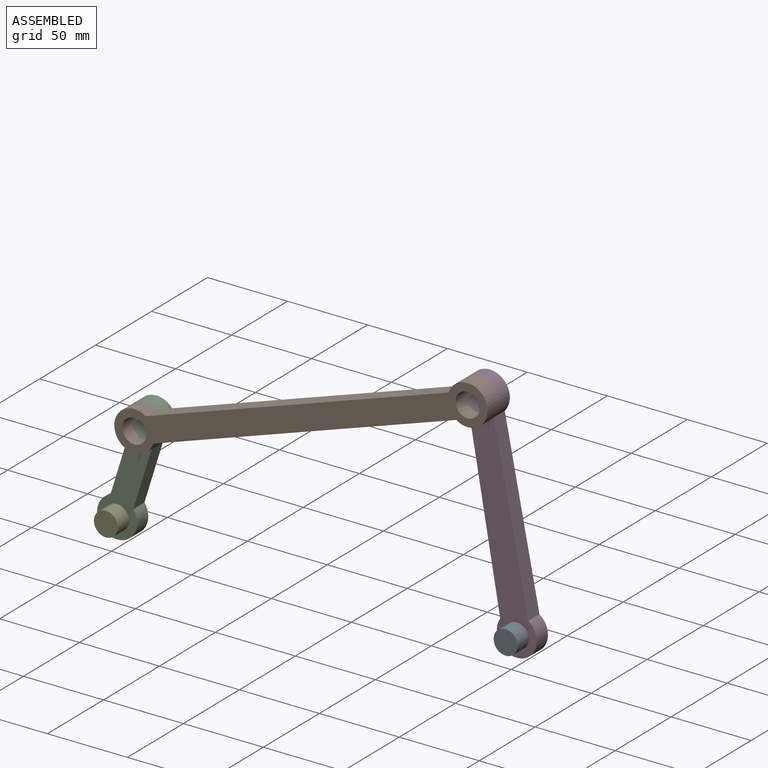
[diagram: assembled view]
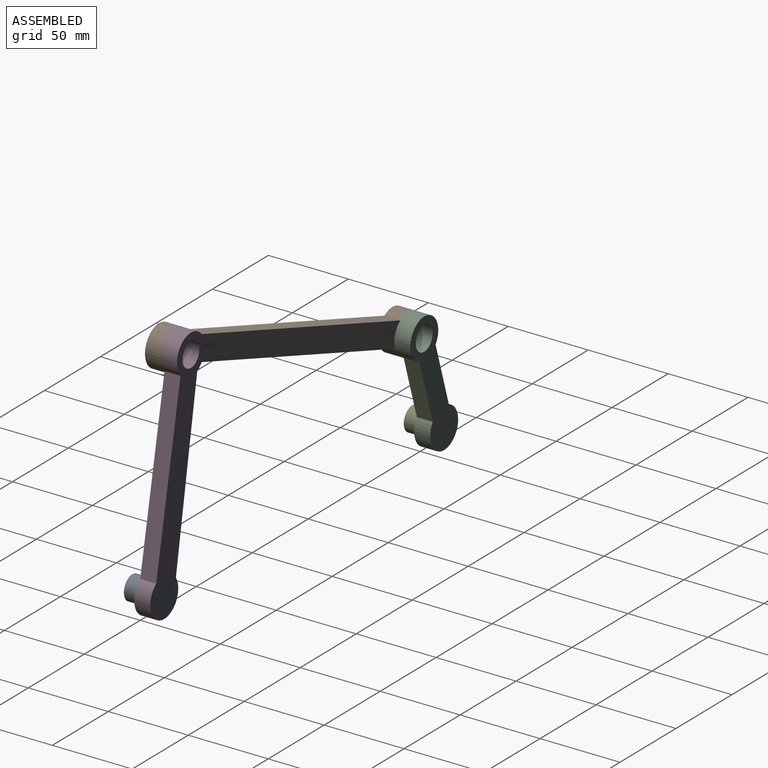
[diagram: assembled view, second angle]
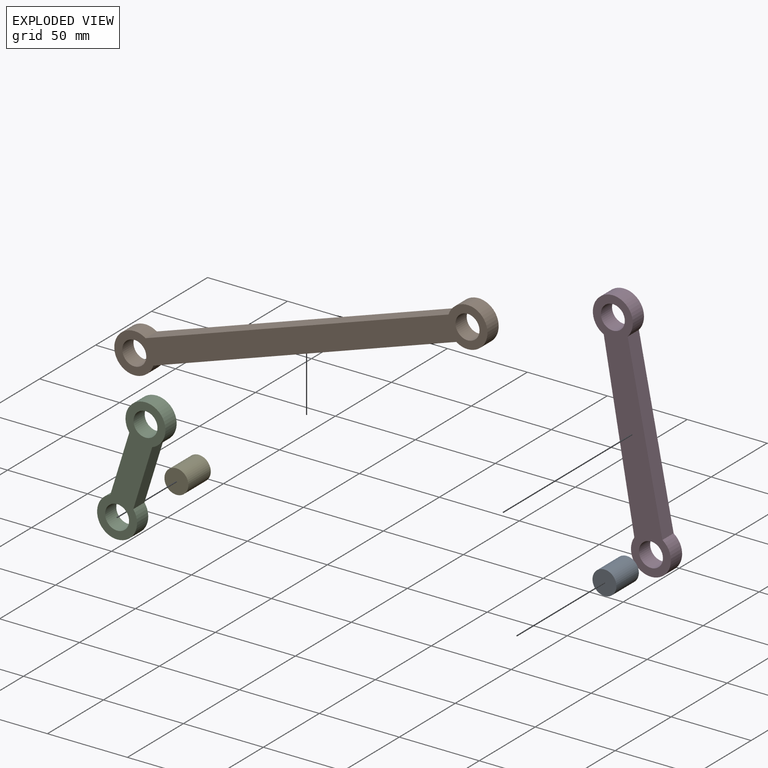
[diagram: exploded view]
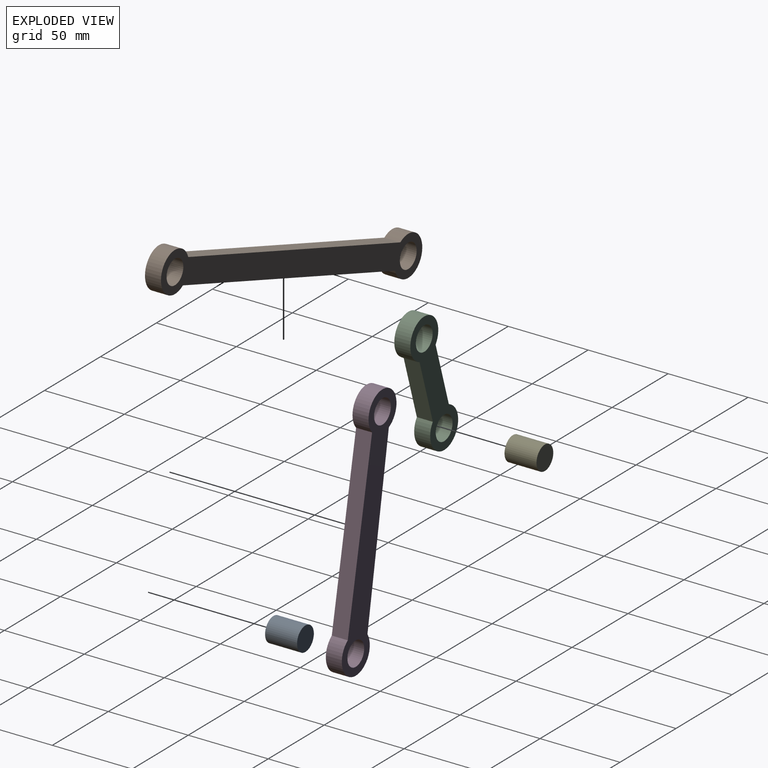
[diagram: exploded view, second angle]
ASSEMBLY  parts=5 mates=4
PART A: 3 faces, bbox 15x20x15 mm
  f0: cylinder r=7.5mm len=20mm, axis (0,1,0), area 942.5mm2, adj f1,f2
  f1: plane 15x15mm, normal (0,-1,0), area 176.7mm2, adj f0
  f2: plane 15x15mm, normal (0,1,0), area 176.7mm2, adj f0
PART B: 8 faces, bbox 235.2x10x90 mm
  f0: plane 191.08x59.08mm, normal (-0.3,0,0.96), area 2000mm2, adj f1,f4,f6,f7
  f1: cylinder r=12.5mm len=25mm, axis (0,1,0), area 624.5mm2, adj f0,f2,f6,f7
  f2: plane 191.08x59.08mm, normal (0.3,0,-0.96), area 2000mm2, adj f1,f4,f6,f7
  f3: cylinder r=7.5mm len=15mm, axis (0,1,0), area 471.2mm2, adj f6,f7
  f4: cylinder r=12.5mm len=25mm, axis (0,1,0), area 624.5mm2, adj f0,f2,f6,f7
  f5: cylinder r=7.5mm len=15mm, axis (0,1,0), area 471.2mm2, adj f6,f7
  f6: plane 235.18x89.99mm, normal (0,-1,0), area 3577.2mm2, adj f0,f1,f2,f3,f4,f5
  f7: plane 235.18x89.99mm, normal (0,1,0), area 3577.2mm2, adj f0,f1,f2,f3,f4,f5
PART C: 8 faces, bbox 28.7x10x84.9 mm
  f0: plane 39.93x10mm, normal (1,0,-0.06), area 400mm2, adj f1,f4,f6,f7
  f1: cylinder r=12.5mm len=25mm, axis (0,-1,0), area 624.5mm2, adj f0,f2,f6,f7
  f2: plane 39.93x10mm, normal (-1,0,0.06), area 400mm2, adj f1,f4,f6,f7
  f3: cylinder r=7.5mm len=15mm, axis (0,-1,0), area 471.2mm2, adj f6,f7
  f4: cylinder r=12.5mm len=25mm, axis (0,-1,0), area 624.5mm2, adj f0,f2,f6,f7
  f5: cylinder r=7.5mm len=15mm, axis (0,-1,0), area 471.2mm2, adj f6,f7
  f6: plane 84.89x28.67mm, normal (0,1,0), area 1177.2mm2, adj f0,f1,f2,f3,f4,f5
  f7: plane 84.89x28.67mm, normal (0,-1,0), area 1177.2mm2, adj f0,f1,f2,f3,f4,f5
PART D: 8 faces, bbox 61.1x10x149.9 mm
  f0: plane 106.59x32.22mm, normal (0.96,0,0.29), area 1113.5mm2, adj f1,f4,f6,f7
  f1: cylinder r=12.5mm len=25mm, axis (0,-1,0), area 621.6mm2, adj f0,f2,f6,f7
  f2: plane 107.32x29.7mm, normal (-0.96,0,-0.27), area 1113.5mm2, adj f1,f4,f6,f7
  f3: cylinder r=7.5mm len=15mm, axis (0,-1,0), area 471.2mm2, adj f6,f7
  f4: cylinder r=12.5mm len=25mm, axis (0,-1,0), area 586.4mm2, adj f0,f2,f6,f7
  f5: cylinder r=7.5mm len=15mm, axis (0,-1,0), area 471.2mm2, adj f6,f7
  f6: plane 149.87x61.15mm, normal (0,1,0), area 2397.9mm2, adj f0,f1,f2,f3,f4,f5
  f7: plane 149.87x61.15mm, normal (0,-1,0), area 2397.9mm2, adj f0,f1,f2,f3,f4,f5
PART E: 3 faces, bbox 15x20x15 mm
  f0: cylinder r=7.5mm len=20mm, axis (0,1,0), area 942.5mm2, adj f1,f2
  f1: plane 15x15mm, normal (0,-1,0), area 176.7mm2, adj f0
  f2: plane 15x15mm, normal (0,1,0), area 176.7mm2, adj f0
PLACE A at identity fixed
PLACE B rot(axis=(0,-1,0),1.5deg) t=(15.66,5,-2.65)mm
PLACE C rot(axis=(0,1,0),13.7deg) t=(0,5,0)mm
PLACE D rot(axis=(0,1,0),5.6deg) t=(1.18,5,24.3)mm
PLACE E at identity fixed
MATE revolute B.f3 <-> D.f1  axis (0,1,0) through (226.16,5,127.8)mm
MATE revolute D.f3 <-> A.f0  axis (0,-1,0) through (250,5,0)mm
MATE revolute B.f1 <-> C.f1  axis (0,1,0) through (17.76,5,57.31)mm
MATE revolute C.f3 <-> E.f0  axis (0,-1,0) through (0,5,0)mm
